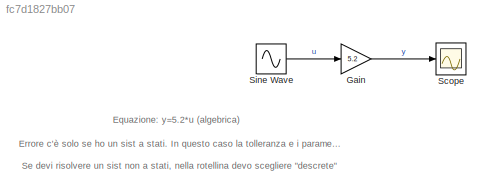
MODEL slx_fc7d1827bb07
KIND model
BLOCK [Gain] Gain
  Gain = 5.2
  OutDataTypeStr = Inherit: Inherit via internal rule
  ParamDataTypeStr = Inherit: Inherit via internal rule
  SaturateOnIntegerOverflow = off
BLOCK [Scope] Scope
  DataFormat = StructureWithTime
  Floating = off
  NumInputPorts = 1
  Ports = [1]
  SampleTime = 0
  ShowLegends = off
BLOCK [Sin] Sine Wave
  Amplitude = 2
  Bias = 1
  Ports = [0, 1]
  SampleTime = 0
ANNOTATION (root): Equazione: y=5.2*u (algebrica)
ANNOTATION (root): Errore c'è solo se ho un sist a stati. In questo caso la tolleranza e i parametri di errore non hanno senso
ANNOTATION (root): Se devi risolvere un sist non a stati, nella rotellina devo scegliere "descrete"
LINE Gain:1 -> Scope:1
LINE Sine Wave:1 -> Gain:1
